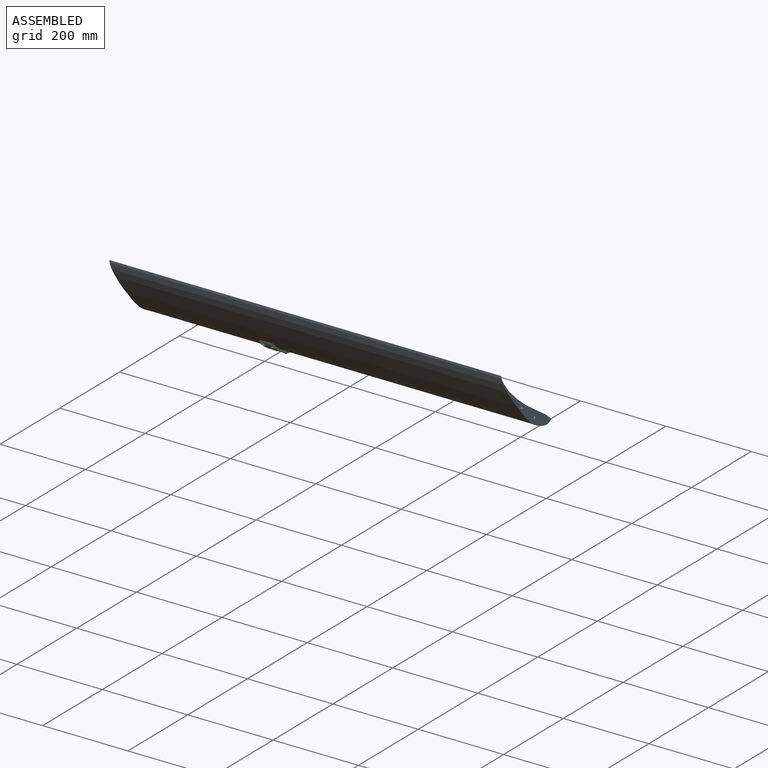
[diagram: assembled view]
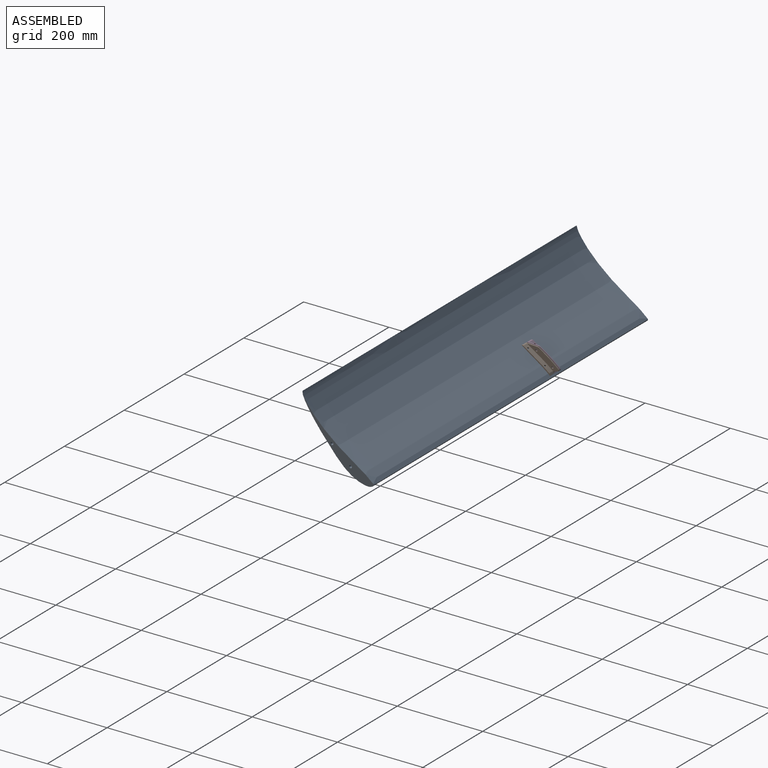
[diagram: assembled view, second angle]
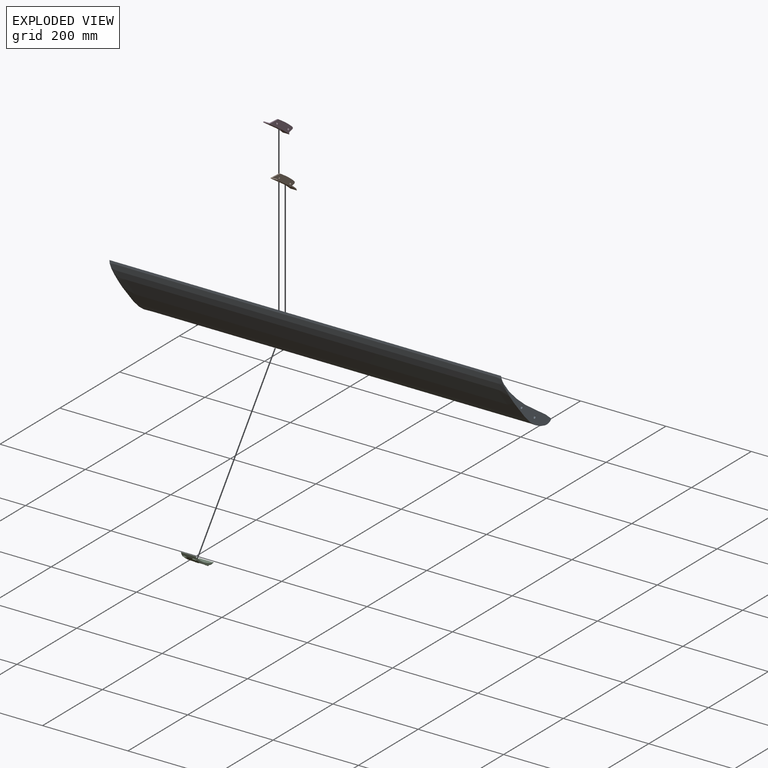
[diagram: exploded view]
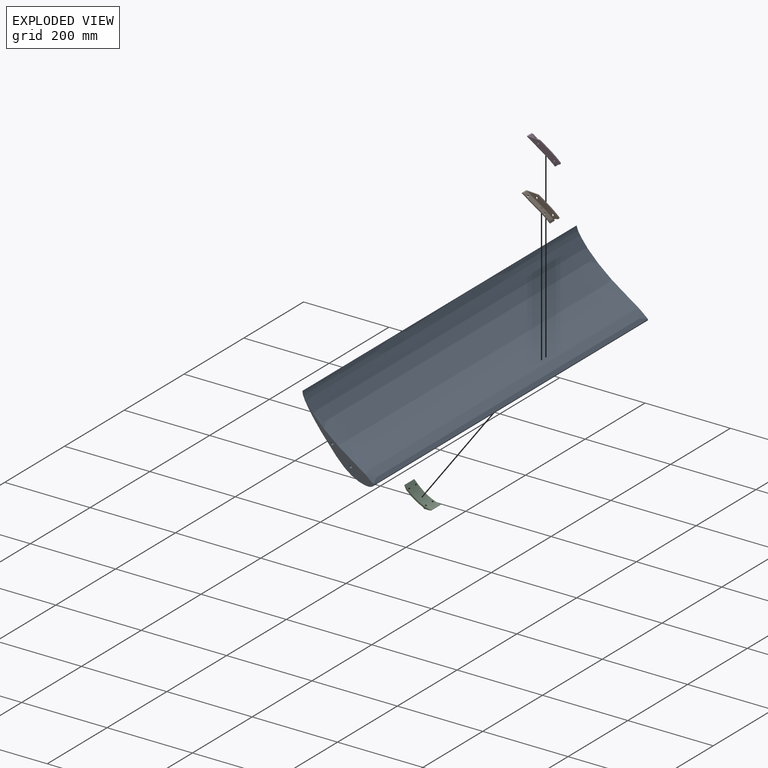
[diagram: exploded view, second angle]
ASSEMBLY  parts=4 mates=2
PART A: 5 faces, bbox 917.6x154.5x173.1 mm
  f0: plane 173.1x154.48mm, normal (1,0,0), area 3322.9mm2, adj f2,f3,f4
  f1: plane 173.1x154.48mm, normal (-1,0,0), area 3322.9mm2, adj f2,f3,f4
  f2: extruded ~917.58x172.26mm, area 438510mm2, adj f0,f1
  f3: cylinder r=3.17mm len=917.58mm, axis (-1,0,0), area 18304.8mm2, adj f0,f1
  f4: cylinder r=3.17mm len=917.58mm, axis (-1,0,0), area 18304.8mm2, adj f0,f1
PART B: 20 faces, bbox 83.9x28.5x16.2 mm
  f0: plane 83.66x28.31mm, normal (0,0,1), area 1082.3mm2, adj f1,f2,f3,f5,f7,f9,f10,f13
  f1: plane 20.88x17.98mm, normal (0.65,0.76,0), area 99.2mm2, adj f0,f4,f8,f15,f17,f19
  f2: extruded ~57.01x7.55mm, area 146.3mm2, adj f0,f4,f13,f19
  f3: plane 6.67x4.63mm, normal (-0.82,-0.57,0), area 20.6mm2, adj f0,f4,f13,f14
  f4: plane 81.94x26.11mm, normal (0,0,-1), area 878.8mm2, adj f1,f2,f3,f6,f7,f9,f10,f13
  f5: extruded ~79.38x15.24mm, area 1185.2mm2, adj f0,f8,f11,f12,f17,f18
  f6: extruded ~72.27x12.7mm, area 893.9mm2, adj f4,f8,f11,f12,f15,f16
  f7: plane 15.24x3.72mm, normal (-0.34,0.94,0), area 53mm2, adj f0,f4,f8,f14,f16,f18
  f8: plane 81.05x14.7mm, normal (0,0,-1), area 200.4mm2, adj f1,f5,f6,f7,f15,f16,f17,f18
  f9: cylinder r=2.49mm len=4.98mm, axis (0,0,1), area 39.7mm2, adj f0,f4
  f10: cylinder r=2.49mm len=4.98mm, axis (0,0,1), area 39.7mm2, adj f0,f4
  f11: cylinder r=2.49mm len=5.34mm, axis (0.17,0.99,0), area 39.6mm2, adj f5,f6
  f12: cylinder r=2.49mm len=5.25mm, axis (0.12,0.99,0), area 39.7mm2, adj f5,f6
  f13: cylinder r=2.54mm len=3.99mm, axis (0,0,1), area 13.9mm2, adj f0,f2,f3,f4
  f14: cylinder r=2.54mm len=3.84mm, axis (0,0,1), area 11.8mm2, adj f0,f3,f4,f7
  f15: cylinder r=2.54mm len=12.7mm, axis (0,0,1), area 17.9mm2, adj f1,f4,f6,f8
  f16: cylinder r=2.54mm len=12.7mm, axis (0,0,1), area 12.7mm2, adj f4,f6,f7,f8
  f17: cylinder r=0.51mm len=15.24mm, axis (0,0,1), area 20mm2, adj f0,f1,f5,f8
  f18: cylinder r=0.51mm len=15.24mm, axis (0,0,1), area 21.9mm2, adj f0,f5,f7,f8
  f19: cylinder r=5.08mm len=2.54mm, axis (0,0,1), area 6.8mm2, adj f0,f1,f2,f4
PART C: 23 faces, bbox 73.1x11.1x32.5 mm
  f0: plane 73.05x11.09mm, normal (0,0,1), area 260.3mm2, adj f1,f2,f3,f4,f18,f19,f20,f22
  f1: extruded ~71.7x32.51mm, area 2296.8mm2, adj f0,f5,f10,f11,f16,f17,f20,f21
  f2: plane 32.51x6.51mm, normal (0.63,-0.78,0), area 271.7mm2, adj f0,f5,f19,f20,f21
  f3: extruded ~56.65x32.51mm, area 1556.6mm2, adj f0,f5,f6,f7,f8,f9,f12,f13
  f4: plane 32.51x6mm, normal (-0.54,-0.84,0), area 232.7mm2, adj f0,f5,f18,f22
  f5: plane 73.05x11.09mm, normal (0,0,-1), area 260.3mm2, adj f1,f2,f3,f4,f18,f19,f21,f22
  f6: cylinder r=5.03mm len=10.06mm, axis (0.02,1,0), area 23.9mm2, adj f3,f7,f18
  f7: plane 10.06x9.37mm, normal (-0.02,-1,0), area 57.7mm2, adj f3,f6,f11
  f8: cylinder r=5.03mm len=10.06mm, axis (0.02,1,0), area 23.9mm2, adj f3,f9,f18
  f9: plane 10.06x9.37mm, normal (-0.02,-1,0), area 57.7mm2, adj f3,f8,f10
  f10: cylinder r=2.49mm len=5.1mm, axis (0.02,1,0), area 70.6mm2, adj f1,f9
  f11: cylinder r=2.49mm len=5.1mm, axis (0.02,1,0), area 70.6mm2, adj f1,f7
  f12: plane 10.06x9.63mm, normal (-0.07,-1,0), area 58.9mm2, adj f3,f13,f17
  f13: cylinder r=5.03mm len=10.06mm, axis (0.07,1,0), area 41.1mm2, adj f3,f12
  f14: plane 10.06x9.63mm, normal (-0.07,-1,0), area 58.9mm2, adj f3,f15,f16
  f15: cylinder r=5.03mm len=10.06mm, axis (0.07,1,0), area 41.1mm2, adj f3,f14
  f16: cylinder r=2.49mm len=6.34mm, axis (0.07,1,0), area 81.5mm2, adj f1,f14
  f17: cylinder r=2.49mm len=6.34mm, axis (0.07,1,0), area 81.5mm2, adj f1,f12
  f18: cylinder r=5.08mm len=32.51mm, axis (0,0,-1), area 46mm2, adj f0,f3,f4,f5,f6,f8
  f19: cylinder r=5.08mm len=32.51mm, axis (0,0,-1), area 63.8mm2, adj f0,f2,f3,f5
  f20: cylinder r=0.51mm len=16.26mm, axis (0,0,-1), area 24mm2, adj f0,f1,f2,f21
  f21: cylinder r=0.51mm len=16.26mm, axis (0,0,-1), area 24mm2, adj f1,f2,f5,f20
  f22: cylinder r=0.51mm len=32.51mm, axis (0,0,-1), area 46.2mm2, adj f0,f1,f4,f5
PART D: 20 faces, bbox 83.9x28.5x16.2 mm
  f0: plane 83.66x28.31mm, normal (0,0,-1), area 1082.3mm2, adj f1,f2,f3,f5,f7,f9,f10,f13
  f1: plane 20.88x17.98mm, normal (0.65,0.76,0), area 99.2mm2, adj f0,f4,f8,f15,f17,f19
  f2: extruded ~57.01x7.55mm, area 146.3mm2, adj f0,f4,f13,f19
  f3: plane 6.67x4.63mm, normal (-0.82,-0.57,0), area 20.6mm2, adj f0,f4,f13,f14
  f4: plane 81.94x26.11mm, normal (0,0,1), area 878.8mm2, adj f1,f2,f3,f6,f7,f9,f10,f13
  f5: extruded ~79.38x15.24mm, area 1185.2mm2, adj f0,f8,f11,f12,f17,f18
  f6: extruded ~72.27x12.7mm, area 893.9mm2, adj f4,f8,f11,f12,f15,f16
  f7: plane 15.24x3.72mm, normal (-0.34,0.94,0), area 53mm2, adj f0,f4,f8,f14,f16,f18
  f8: plane 81.05x14.72mm, normal (0,0,1), area 200.4mm2, adj f1,f5,f6,f7,f15,f16,f17,f18
  f9: cylinder r=2.49mm len=4.98mm, axis (0,0,-1), area 39.7mm2, adj f0,f4
  f10: cylinder r=2.49mm len=4.98mm, axis (0,0,-1), area 39.7mm2, adj f0,f4
  f11: cylinder r=2.49mm len=5.33mm, axis (0.17,0.99,0), area 39.7mm2, adj f5,f6
  f12: cylinder r=2.49mm len=5.25mm, axis (0.12,0.99,0), area 39.7mm2, adj f5,f6
  f13: cylinder r=2.54mm len=3.99mm, axis (0,0,-1), area 13.9mm2, adj f0,f2,f3,f4
  f14: cylinder r=2.54mm len=3.84mm, axis (0,0,-1), area 11.8mm2, adj f0,f3,f4,f7
  f15: cylinder r=2.54mm len=12.7mm, axis (0,0,-1), area 17.9mm2, adj f1,f4,f6,f8
  f16: cylinder r=2.54mm len=12.7mm, axis (0,0,-1), area 12.7mm2, adj f4,f6,f7,f8
  f17: cylinder r=0.51mm len=15.24mm, axis (0,0,-1), area 20mm2, adj f0,f1,f5,f8
  f18: cylinder r=0.51mm len=15.24mm, axis (0,0,-1), area 21.9mm2, adj f0,f5,f7,f8
  f19: cylinder r=5.08mm len=2.54mm, axis (0,0,-1), area 6.8mm2, adj f0,f1,f2,f4
PLACE A rot(axis=(1,0,0),4.5deg) t=(0,299.19,-696.96)mm
PLACE B rot(axis=(0.37,-0.86,-0.37),98.8deg) t=(-150.06,-208.77,124.36)mm
PLACE C rot(axis=(0.43,0.79,0.43),103.3deg) t=(-151.08,-470.06,-96.76)mm
PLACE D rot(axis=(0.37,-0.86,-0.37),98.8deg) t=(-152.09,-208.77,124.36)mm
MATE fastened C.f16 <-> B.f12  axis (0,0.6,0.8) through (-139.9,-187.15,97.63)mm
MATE fastened D.f9 <-> B.f9  axis (1,0,0) through (-152.09,-159.68,115.67)mm
